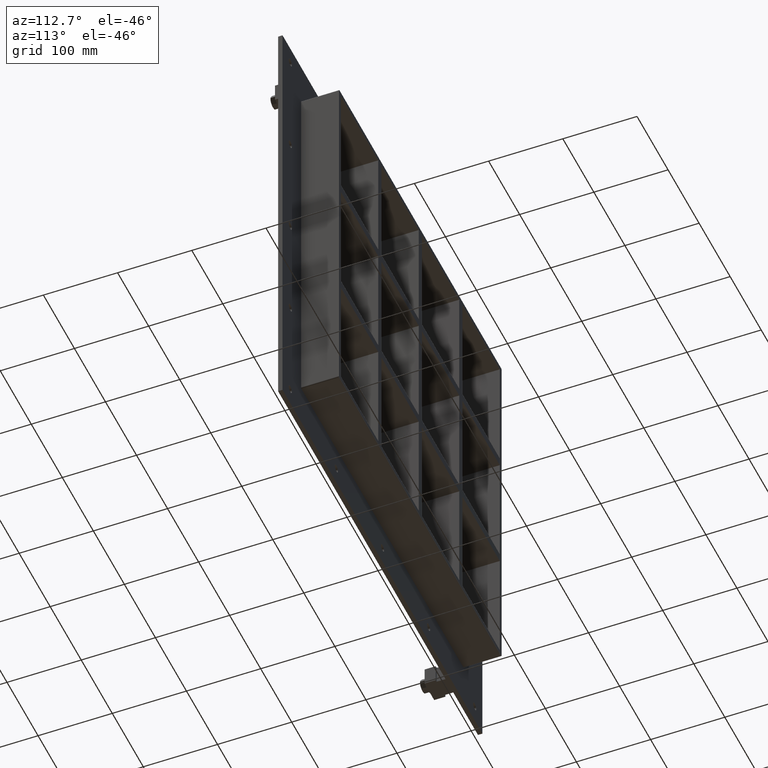
[diagram: clean part render]
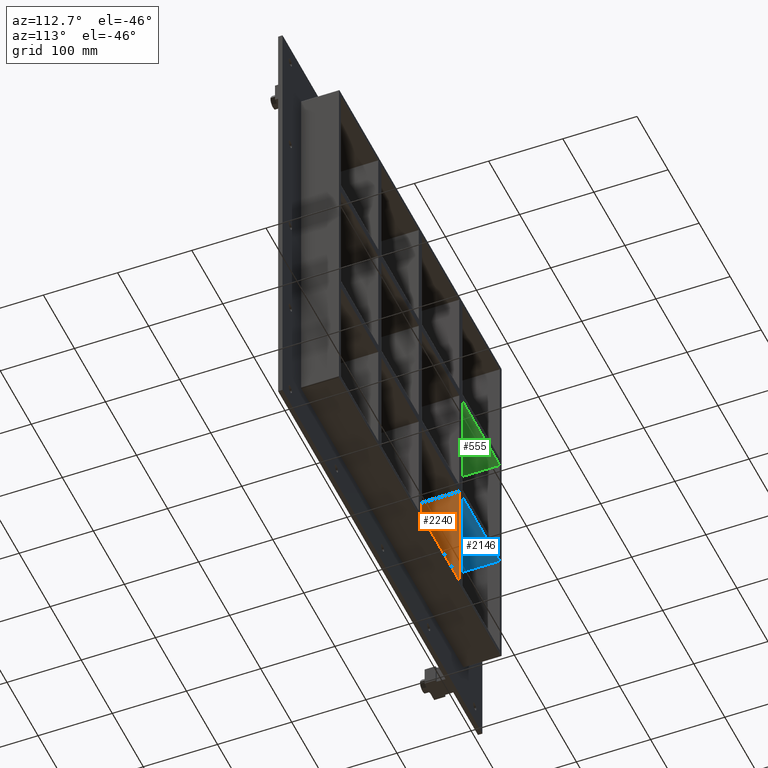
[diagram: same view with three faces highlighted in distinct colors, each labeled with its STEP entity id]
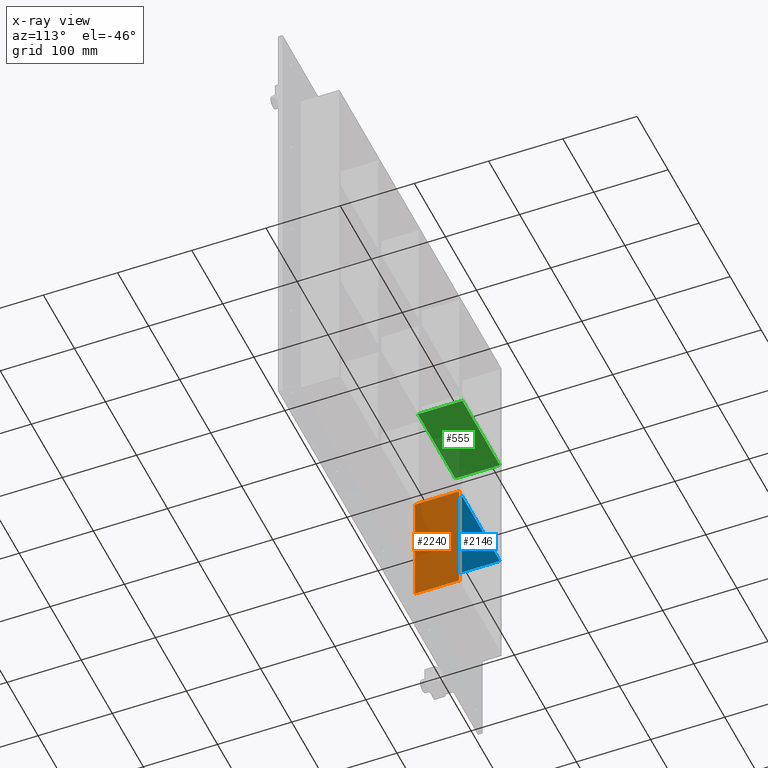
[diagram: x-ray of the same camera — body ghosted, the three highlighted faces saturated]
A machine part, auxiliary view with three faces highlighted in distinct colors.
The next image is the same camera in x-ray (body ghosted, the three faces saturated) — at least one of them is partly hidden behind the body in this view.
Their STEP definitions:

[orange] entity #2240 — the highlighted planar face has unit normal (1, 0, 0).
#1366=CARTESIAN_POINT('',(-125.49999999999272,57.0,-91.750000000010928));
#1367=VERTEX_POINT('',#1366);
#1374=CARTESIAN_POINT('',(-125.49999999999272,57.0,-251.24999999998178));
#1375=VERTEX_POINT('',#1374);
#1376=CARTESIAN_POINT('',(-125.49999999999272,57.0,-91.750000000010942));
#1377=DIRECTION('',(0.0,0.0,-1.0));
#1378=VECTOR('',#1377,159.49999999997084);
#1379=LINE('',#1376,#1378);
#1380=EDGE_CURVE('',#1367,#1375,#1379,.T.);
#1697=CARTESIAN_POINT('',(-125.49999999999272,-3.0,-251.24999999998175));
#1698=VERTEX_POINT('',#1697);
#1699=CARTESIAN_POINT('',(-125.49999999999272,57.000000000000007,-251.25000000000003));
#1700=DIRECTION('',(0.0,-1.0,0.0));
#1701=VECTOR('',#1700,60.000000000000007);
#1702=LINE('',#1699,#1701);
#1703=EDGE_CURVE('',#1375,#1698,#1702,.T.);
#1944=CARTESIAN_POINT('',(-125.49999999999272,-3.0,-91.750000000010928));
#1945=VERTEX_POINT('',#1944);
#1946=CARTESIAN_POINT('',(-125.49999999999272,-3.0,-91.750000000010942));
#1947=DIRECTION('',(0.0,0.0,-1.0));
#1948=VECTOR('',#1947,159.49999999997084);
#1949=LINE('',#1946,#1948);
#1950=EDGE_CURVE('',#1945,#1698,#1949,.T.);
#2038=CARTESIAN_POINT('',(-125.49999999999272,57.0,-91.750000000010928));
#2039=DIRECTION('',(0.0,-1.0,0.0));
#2040=VECTOR('',#2039,60.0);
#2041=LINE('',#2038,#2040);
#2042=EDGE_CURVE('',#1367,#1945,#2041,.T.);
#2229=CARTESIAN_POINT('',(-125.49999999999272,-3.0,251.25000000000003));
#2230=DIRECTION('',(1.0,0.0,0.0));
#2231=DIRECTION('',(0.0,0.0,-1.0));
#2232=AXIS2_PLACEMENT_3D('',#2229,#2230,#2231);
#2233=PLANE('',#2232);
#2234=ORIENTED_EDGE('',*,*,#2042,.T.);
#2235=ORIENTED_EDGE('',*,*,#1950,.T.);
#2236=ORIENTED_EDGE('',*,*,#1703,.F.);
#2237=ORIENTED_EDGE('',*,*,#1380,.F.);
#2238=EDGE_LOOP('',(#2234,#2235,#2236,#2237));
#2239=FACE_OUTER_BOUND('',#2238,.T.);
#2240=ADVANCED_FACE('',(#2239),#2233,.T.);

[blue] entity #2146 — the highlighted planar face has unit normal (0, 0, -1).
#1322=CARTESIAN_POINT('',(-255.99999999999866,57.0,-91.750000000010914));
#1323=VERTEX_POINT('',#1322);
#1340=CARTESIAN_POINT('',(-135.50000000000026,57.0,-91.750000000010914));
#1341=VERTEX_POINT('',#1340);
#1348=CARTESIAN_POINT('',(-135.50000000000023,57.0,-91.750000000010914));
#1349=DIRECTION('',(-1.0,0.0,0.0));
#1350=VECTOR('',#1349,120.49999999999841);
#1351=LINE('',#1348,#1350);
#1352=EDGE_CURVE('',#1341,#1323,#1351,.T.);
#1979=CARTESIAN_POINT('',(-135.50000000000026,-3.0,-91.750000000010914));
#1980=VERTEX_POINT('',#1979);
#1981=CARTESIAN_POINT('',(-255.99999999999866,-3.0,-91.750000000010914));
#1982=VERTEX_POINT('',#1981);
#1983=CARTESIAN_POINT('',(-135.50000000000023,-3.0,-91.750000000010914));
#1984=DIRECTION('',(-1.0,0.0,0.0));
#1985=VECTOR('',#1984,120.49999999999841);
#1986=LINE('',#1983,#1985);
#1987=EDGE_CURVE('',#1980,#1982,#1986,.T.);
#2125=CARTESIAN_POINT('',(256.00000000000364,-3.0,-91.750000000010942));
#2126=DIRECTION('',(0.0,0.0,-1.0));
#2127=DIRECTION('',(-1.0,0.0,0.0));
#2128=AXIS2_PLACEMENT_3D('',#2125,#2126,#2127);
#2129=PLANE('',#2128);
#2130=CARTESIAN_POINT('',(-135.50000000000028,-3.0,-91.750000000010914));
#2131=DIRECTION('',(0.0,1.0,0.0));
#2132=VECTOR('',#2131,60.0);
#2133=LINE('',#2130,#2132);
#2134=EDGE_CURVE('',#1980,#1341,#2133,.T.);
#2135=ORIENTED_EDGE('',*,*,#2134,.F.);
#2136=ORIENTED_EDGE('',*,*,#1987,.T.);
#2137=CARTESIAN_POINT('',(-256.00000000000006,57.000000000000007,-91.750000000010914));
#2138=DIRECTION('',(0.0,-1.0,0.0));
#2139=VECTOR('',#2138,60.000000000000007);
#2140=LINE('',#2137,#2139);
#2141=EDGE_CURVE('',#1323,#1982,#2140,.T.);
#2142=ORIENTED_EDGE('',*,*,#2141,.F.);
#2143=ORIENTED_EDGE('',*,*,#1352,.F.);
#2144=EDGE_LOOP('',(#2135,#2136,#2142,#2143));
#2145=FACE_OUTER_BOUND('',#2144,.T.);
#2146=ADVANCED_FACE('',(#2145),#2129,.T.);

[green] entity #555 — the highlighted planar face has unit normal (0, 0, -1).
#516=CARTESIAN_POINT('',(256.00000000000364,-3.0,79.749999999989072));
#517=DIRECTION('',(0.0,0.0,-1.0));
#518=DIRECTION('',(-1.0,0.0,0.0));
#519=AXIS2_PLACEMENT_3D('',#516,#517,#518);
#520=PLANE('',#519);
#521=CARTESIAN_POINT('',(-135.50000000000031,-3.0,79.749999999989114));
#522=VERTEX_POINT('',#521);
#523=CARTESIAN_POINT('',(-135.50000000000031,57.0,79.749999999989114));
#524=VERTEX_POINT('',#523);
#525=CARTESIAN_POINT('',(-135.50000000000028,-3.0,79.749999999989114));
#526=DIRECTION('',(0.0,1.0,0.0));
#527=VECTOR('',#526,60.0);
#528=LINE('',#525,#527);
#529=EDGE_CURVE('',#522,#524,#528,.T.);
#530=ORIENTED_EDGE('',*,*,#529,.F.);
#531=CARTESIAN_POINT('',(-255.99999999999866,-3.0,79.749999999989114));
#532=VERTEX_POINT('',#531);
#533=CARTESIAN_POINT('',(-135.50000000000034,-3.0,79.7499999999891));
#534=DIRECTION('',(-1.0,0.0,0.0));
#535=VECTOR('',#534,120.49999999999829);
#536=LINE('',#533,#535);
#537=EDGE_CURVE('',#522,#532,#536,.T.);
#538=ORIENTED_EDGE('',*,*,#537,.T.);
#539=CARTESIAN_POINT('',(-255.99999999999866,57.0,79.749999999989114));
#540=VERTEX_POINT('',#539);
#541=CARTESIAN_POINT('',(-256.00000000000006,57.000000000000007,79.749999999989143));
#542=DIRECTION('',(0.0,-1.0,0.0));
#543=VECTOR('',#542,60.000000000000007);
#544=LINE('',#541,#543);
#545=EDGE_CURVE('',#540,#532,#544,.T.);
#546=ORIENTED_EDGE('',*,*,#545,.F.);
#547=CARTESIAN_POINT('',(-135.50000000000034,57.0,79.7499999999891));
#548=DIRECTION('',(-1.0,0.0,0.0));
#549=VECTOR('',#548,120.49999999999829);
#550=LINE('',#547,#549);
#551=EDGE_CURVE('',#524,#540,#550,.T.);
#552=ORIENTED_EDGE('',*,*,#551,.F.);
#553=EDGE_LOOP('',(#530,#538,#546,#552));
#554=FACE_OUTER_BOUND('',#553,.T.);
#555=ADVANCED_FACE('',(#554),#520,.T.);